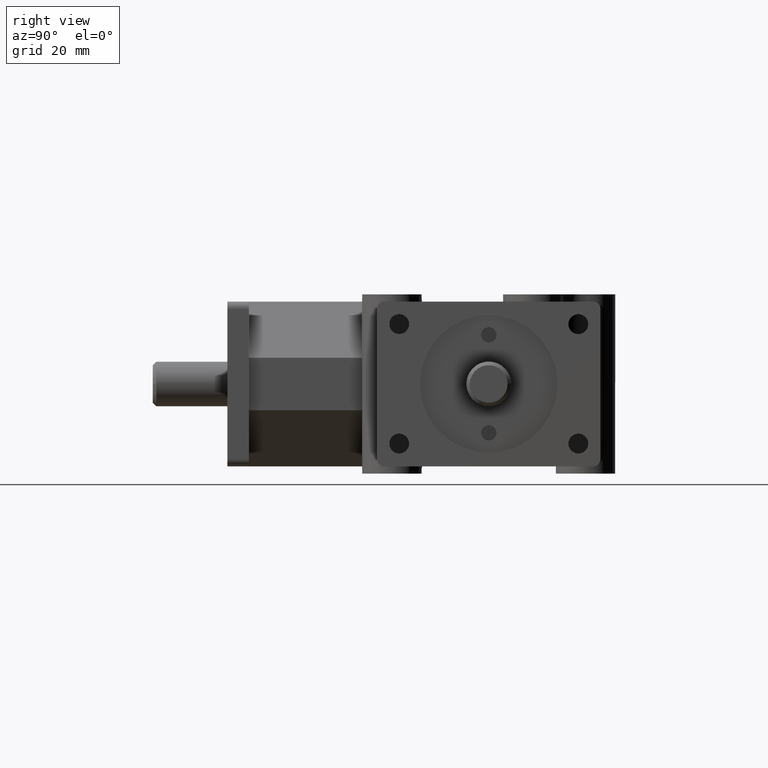
[diagram: clean part render]
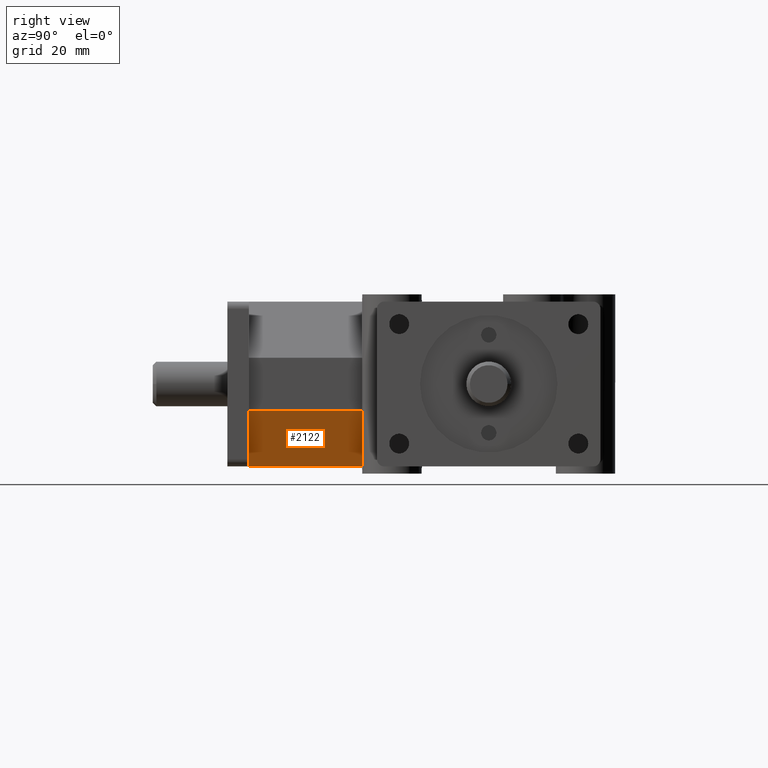
[diagram: same view with one face highlighted and labeled with its STEP entity id]
A machine part, right view. The second image highlights one B-rep face of the part: STEP entity #2122.
In plain terms, the highlighted planar face has unit normal (0.7071, 0, -0.7071).
Its self-contained STEP definition (entity closure, byte-faithful):
#91=PLANE('',#2329);
#184=FACE_OUTER_BOUND('',#325,.T.);
#325=EDGE_LOOP('',(#1693,#1694,#1695,#1696));
#615=LINE('',#3412,#810);
#646=LINE('',#3488,#841);
#647=LINE('',#3490,#842);
#648=LINE('',#3491,#843);
#810=VECTOR('',#2735,1.);
#841=VECTOR('',#2808,1.);
#842=VECTOR('',#2809,1.);
#843=VECTOR('',#2810,1.);
#1040=VERTEX_POINT('',#3409);
#1041=VERTEX_POINT('',#3411);
#1065=VERTEX_POINT('',#3487);
#1066=VERTEX_POINT('',#3489);
#1273=EDGE_CURVE('',#1041,#1040,#615,.T.);
#1311=EDGE_CURVE('',#1065,#1041,#646,.F.);
#1312=EDGE_CURVE('',#1040,#1066,#647,.F.);
#1313=EDGE_CURVE('',#1066,#1065,#648,.T.);
#1693=ORIENTED_EDGE('',*,*,#1311,.T.);
#1694=ORIENTED_EDGE('',*,*,#1273,.T.);
#1695=ORIENTED_EDGE('',*,*,#1312,.T.);
#1696=ORIENTED_EDGE('',*,*,#1313,.T.);
#2122=ADVANCED_FACE('',(#184),#91,.T.);
#2329=AXIS2_PLACEMENT_3D('',#3486,#2806,#2807);
#2735=DIRECTION('',(0.,1.,0.));
#2806=DIRECTION('center_axis',(0.707106781186548,0.,-0.707106781186548));
#2807=DIRECTION('ref_axis',(0.707106781186548,0.,0.707106781186548));
#2808=DIRECTION('',(0.707106781186548,0.,0.707106781186548));
#2809=DIRECTION('',(-0.707106781186548,0.,-0.707106781186548));
#2810=DIRECTION('',(0.,-1.,0.));
#3409=CARTESIAN_POINT('',(0.28,1.1275,-0.69));
#3411=CARTESIAN_POINT('',(0.28,0.18,-0.69));
#3412=CARTESIAN_POINT('',(0.28,1.40061509118314,-0.69));
#3486=CARTESIAN_POINT('Origin',(0.515,1.40061509118314,-0.455));
#3487=CARTESIAN_POINT('',(0.75,0.18,-0.22));
#3488=CARTESIAN_POINT('',(0.6875,0.18,-0.2825));
#3489=CARTESIAN_POINT('',(0.75,1.1275,-0.22));
#3490=CARTESIAN_POINT('',(0.7025,1.1275,-0.2675));
#3491=CARTESIAN_POINT('',(0.75,1.40061509118314,-0.22));